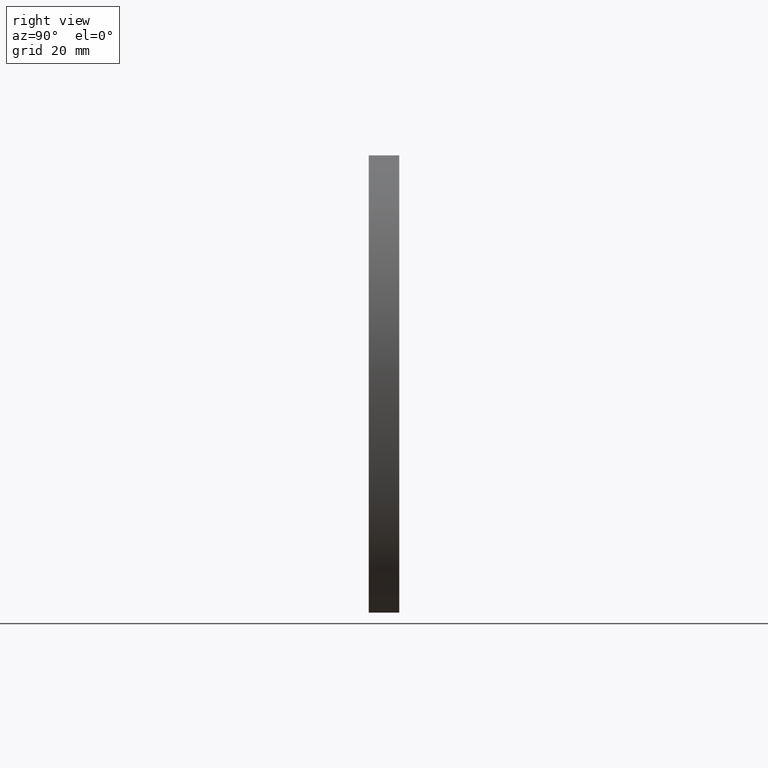
[diagram: clean part render]
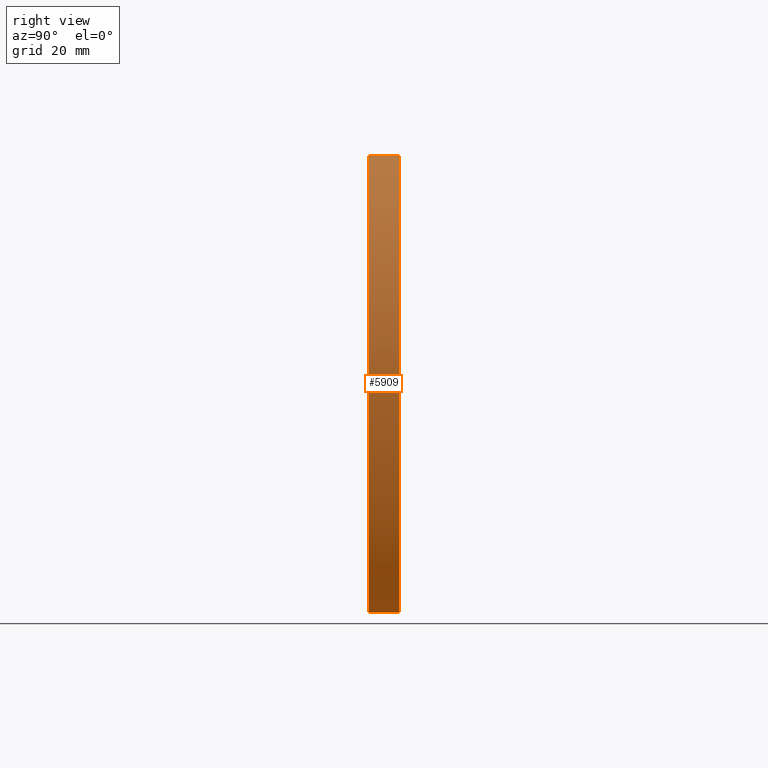
[diagram: same view with one face highlighted and labeled with its STEP entity id]
A machine part, right view. The second image highlights one B-rep face of the part: STEP entity #5909.
In plain terms, the highlighted cylindrical surface (partial cylindrical patch) has radius 94.4709 mm, axis along (-0, -1, -0).
Its self-contained STEP definition (entity closure, byte-faithful):
#54 = DIRECTION ( 'NONE',  ( 0.0000000000000000000, 0.0000000000000000000, -1.000000000000000000 ) ) ;
#291 = VERTEX_POINT ( 'NONE', #9118 ) ;
#378 = ORIENTED_EDGE ( 'NONE', *, *, #7234, .F. ) ;
#518 = VERTEX_POINT ( 'NONE', #4637 ) ;
#1004 = AXIS2_PLACEMENT_3D ( 'NONE', #2956, #8536, #6881 ) ;
#1363 = FACE_OUTER_BOUND ( 'NONE', #4704, .T. ) ;
#1606 = VERTEX_POINT ( 'NONE', #7852 ) ;
#1947 = CARTESIAN_POINT ( 'NONE',  ( 53.50000000000000700, 8.000000000000000000, -60.00000000000000000 ) ) ;
#1958 = VECTOR ( 'NONE', #6127, 1000.000000000000000 ) ;
#2004 = ORIENTED_EDGE ( 'NONE', *, *, #4465, .T. ) ;
#2068 = CARTESIAN_POINT ( 'NONE',  ( 53.50000000000000700, 8.000000000000000000, 60.00000000000000000 ) ) ;
#2357 = CARTESIAN_POINT ( 'NONE',  ( -19.47093023255816400, 8.000000000000000000, 0.0000000000000000000 ) ) ;
#2768 = VERTEX_POINT ( 'NONE', #3091 ) ;
#2956 = CARTESIAN_POINT ( 'NONE',  ( -19.47093023255816400, 0.0000000000000000000, 0.0000000000000000000 ) ) ;
#3091 = CARTESIAN_POINT ( 'NONE',  ( 53.50000000000000700, 8.000000000000000000, 60.00000000000000000 ) ) ;
#3117 = VECTOR ( 'NONE', #9976, 1000.000000000000000 ) ;
#4273 = DIRECTION ( 'NONE',  ( 0.0000000000000000000, 0.0000000000000000000, -1.000000000000000000 ) ) ;
#4465 = EDGE_CURVE ( 'NONE', #518, #291, #5021, .T. ) ;
#4637 = CARTESIAN_POINT ( 'NONE',  ( 53.50000000000000700, 0.0000000000000000000, 60.00000000000000000 ) ) ;
#4704 = EDGE_LOOP ( 'NONE', ( #2004, #378, #6513, #9959 ) ) ;
#5021 = CIRCLE ( 'NONE', #1004, 94.47093023255816000 ) ;
#5405 = AXIS2_PLACEMENT_3D ( 'NONE', #6514, #8998, #4273 ) ;
#5482 = LINE ( 'NONE', #1947, #3117 ) ;
#5909 = ADVANCED_FACE ( 'NONE', ( #1363 ), #8749, .T. ) ;
#6127 = DIRECTION ( 'NONE',  ( -0.0000000000000000000, -1.000000000000000000, -0.0000000000000000000 ) ) ;
#6513 = ORIENTED_EDGE ( 'NONE', *, *, #9137, .F. ) ;
#6514 = CARTESIAN_POINT ( 'NONE',  ( -19.47093023255816400, 8.000000000000000000, 0.0000000000000000000 ) ) ;
#6881 = DIRECTION ( 'NONE',  ( 0.0000000000000000000, 0.0000000000000000000, -1.000000000000000000 ) ) ;
#7234 = EDGE_CURVE ( 'NONE', #1606, #291, #5482, .T. ) ;
#7462 = LINE ( 'NONE', #2068, #1958 ) ;
#7852 = CARTESIAN_POINT ( 'NONE',  ( 53.50000000000000700, 8.000000000000000000, -60.00000000000000000 ) ) ;
#8536 = DIRECTION ( 'NONE',  ( 0.0000000000000000000, 1.000000000000000000, -0.0000000000000000000 ) ) ;
#8749 = CYLINDRICAL_SURFACE ( 'NONE', #5405, 94.47093023255816000 ) ;
#8998 = DIRECTION ( 'NONE',  ( -0.0000000000000000000, -1.000000000000000000, -0.0000000000000000000 ) ) ;
#9118 = CARTESIAN_POINT ( 'NONE',  ( 53.50000000000000700, 0.0000000000000000000, -60.00000000000000000 ) ) ;
#9137 = EDGE_CURVE ( 'NONE', #2768, #1606, #10088, .T. ) ;
#9490 = AXIS2_PLACEMENT_3D ( 'NONE', #2357, #9659, #54 ) ;
#9549 = EDGE_CURVE ( 'NONE', #2768, #518, #7462, .T. ) ;
#9659 = DIRECTION ( 'NONE',  ( 0.0000000000000000000, 1.000000000000000000, -0.0000000000000000000 ) ) ;
#9959 = ORIENTED_EDGE ( 'NONE', *, *, #9549, .T. ) ;
#9976 = DIRECTION ( 'NONE',  ( -0.0000000000000000000, -1.000000000000000000, -0.0000000000000000000 ) ) ;
#10088 = CIRCLE ( 'NONE', #9490, 94.47093023255816000 ) ;